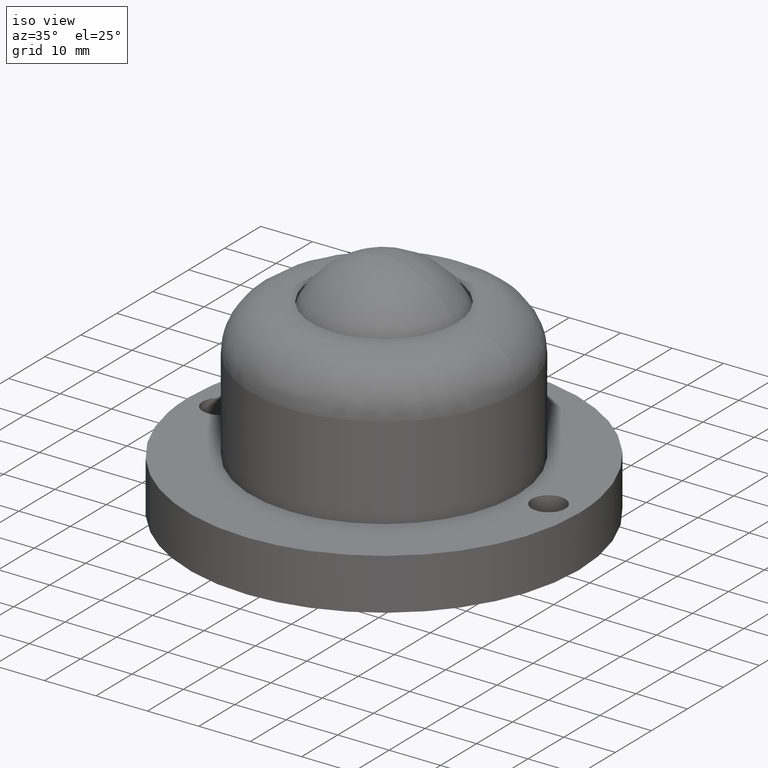
[diagram: clean part render]
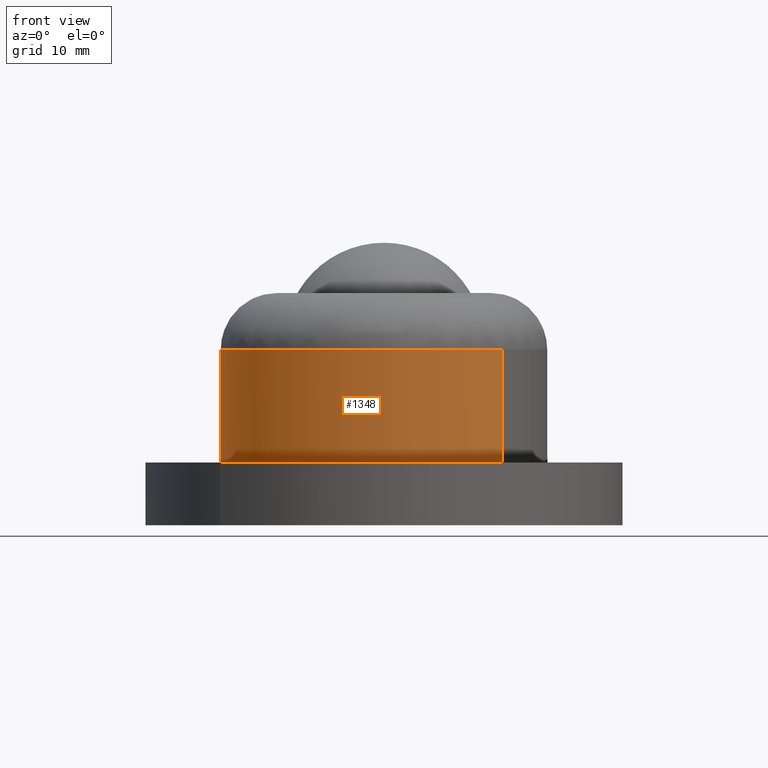
[diagram: tour spotlight — one face highlighted and labeled with its STEP entity id]
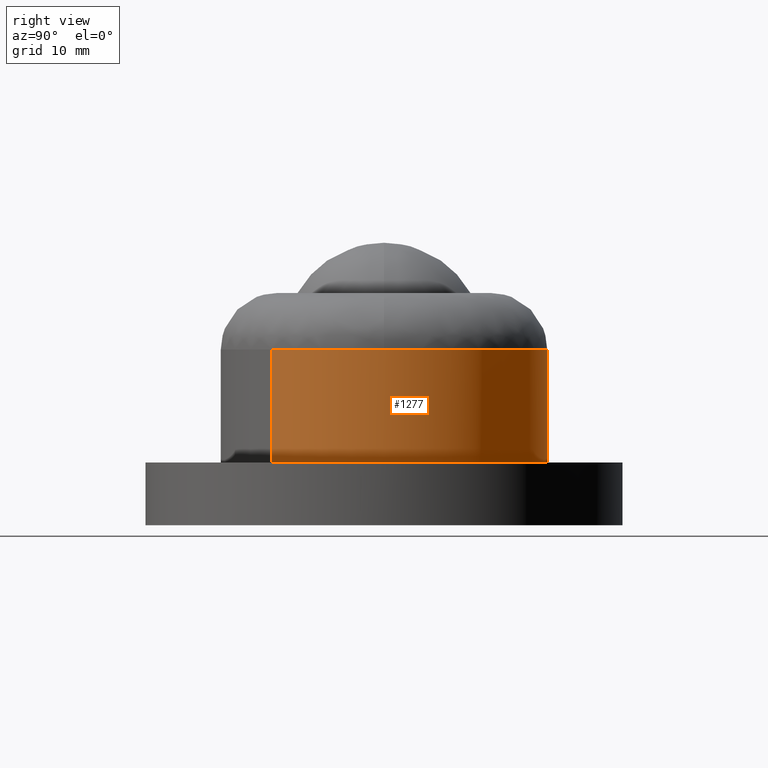
[diagram: tour spotlight — one face highlighted and labeled with its STEP entity id]
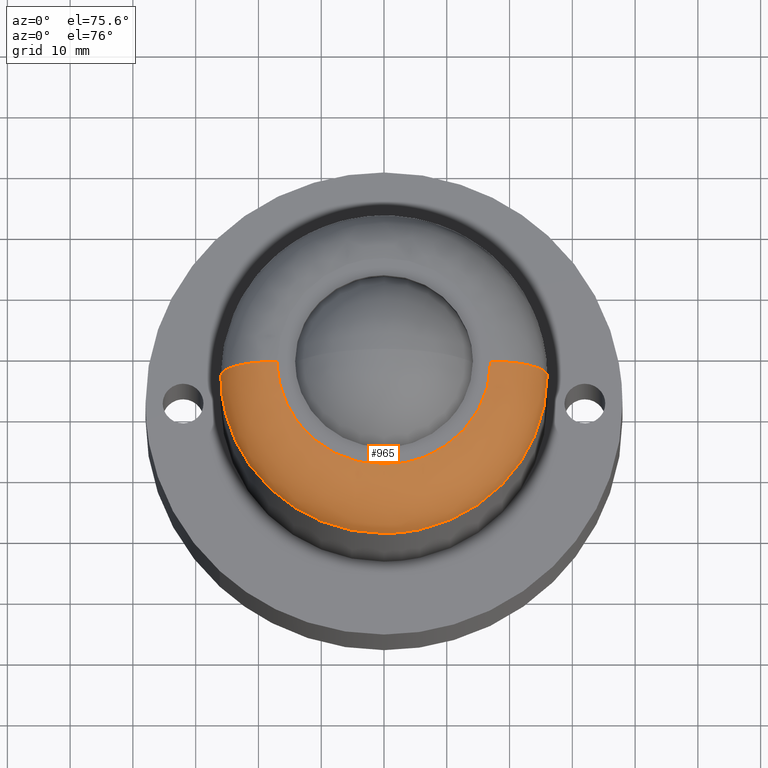
[diagram: tour spotlight — one face highlighted and labeled with its STEP entity id]
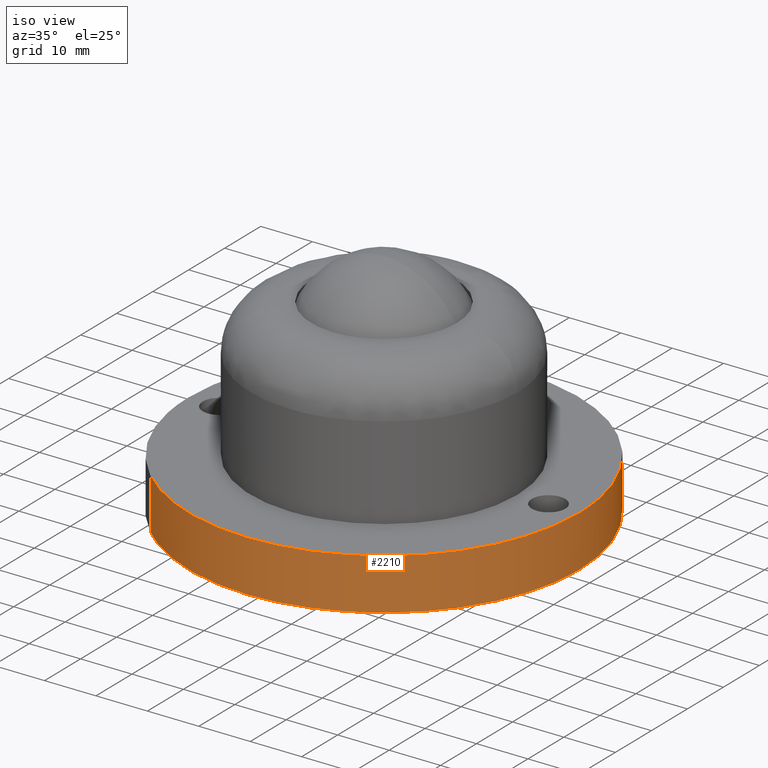
[diagram: tour spotlight — one face highlighted and labeled with its STEP entity id]
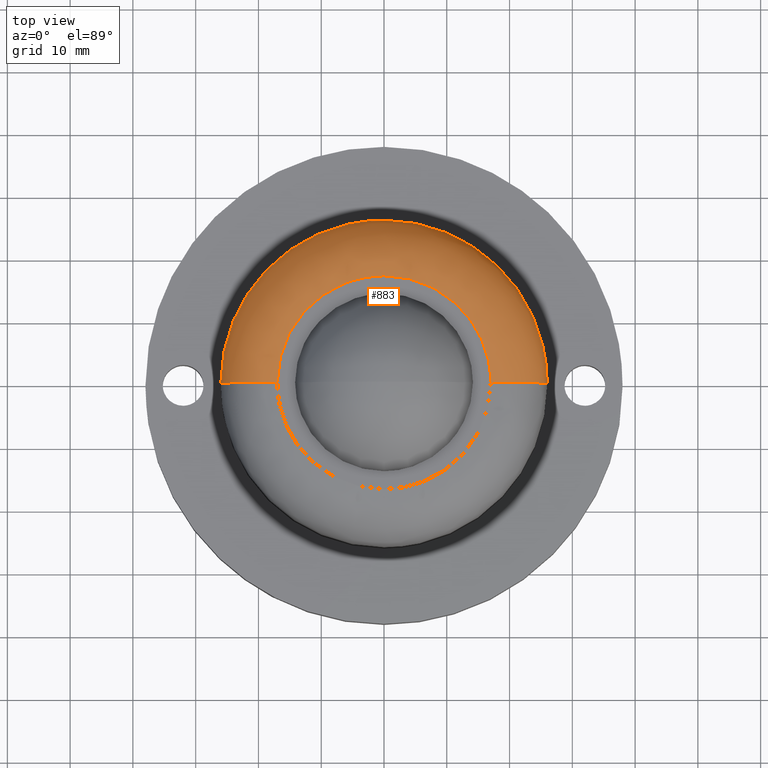
[diagram: tour spotlight — one face highlighted and labeled with its STEP entity id]
A machine part: a face-by-face anatomy tour. The part has 52 B-rep faces; the first image is the clean iso view, then the 5 largest visible faces are spotlighted one at a time (largest first), each with its STEP entity span.

Face 1 — front view, entity #1348. In plain terms, the highlighted face is a freeform B-spline surface patch.
Definition (entity closure, byte-faithful):
#800=CARTESIAN_POINT('',(-25.999999999999741,-2.009686E-015,28.000000000059298));
#801=VERTEX_POINT('',#800);
#855=CARTESIAN_POINT('',(-18.859733453716679,17.897218830917581,28.000000000059298));
#856=VERTEX_POINT('',#855);
#869=CARTESIAN_POINT('',(-25.999999999999741,-2.009686E-015,28.000000000059298));
#870=CARTESIAN_POINT('',(-26.000051954629740,1.182324254518316,28.000000000059320));
#871=CARTESIAN_POINT('',(-25.855979428018330,3.289934905158254,28.000000000059281));
#872=CARTESIAN_POINT('',(-25.273243311875351,6.323189175135181,28.000000000059330));
#873=CARTESIAN_POINT('',(-24.376884216210410,9.225670944524639,28.000000000059281));
#874=CARTESIAN_POINT('',(-22.966008279671708,12.375643389097940,28.000000000059281));
#875=CARTESIAN_POINT('',(-21.093327038164819,15.339568555392930,28.000000000059480));
#876=CARTESIAN_POINT('',(-19.567443333481361,17.151467193017290,28.000000000059242));
#877=CARTESIAN_POINT('',(-18.859733453716679,17.897218830917581,28.000000000059298));
#878=B_SPLINE_CURVE_WITH_KNOTS('',3,(#869,#870,#871,#872,#873,#874,#875,#876,#877),.UNSPECIFIED.,.F.,.U.,(4,1,1,1,1,1,4),(0.000000012727657,3.546971912563091,6.322879466614101,9.252992969258049,12.645745639215409,16.655381712799429,19.739702720165660),.UNSPECIFIED.);
#879=EDGE_CURVE('',#801,#856,#878,.T.);
#914=CARTESIAN_POINT('',(-0.000000937669430,-25.999999999999979,28.000000000059298));
#915=VERTEX_POINT('',#914);
#916=CARTESIAN_POINT('',(-0.000000937669430,-25.999999999999979,28.000000000059298));
#917=CARTESIAN_POINT('',(-1.329447299209452,-26.000081678380820,28.000000000059298));
#918=CARTESIAN_POINT('',(-3.828783729788278,-25.807873356318751,28.000000000059341));
#919=CARTESIAN_POINT('',(-7.677127066206571,-24.943788153502140,28.000000000059298));
#920=CARTESIAN_POINT('',(-10.909306903873460,-23.685579761805741,28.000000000059259));
#921=CARTESIAN_POINT('',(-13.801204650618409,-22.093800438023170,28.000000000059519));
#922=CARTESIAN_POINT('',(-16.027126123036599,-20.536331033175291,28.000000000058979));
#923=CARTESIAN_POINT('',(-18.232693358749550,-18.610063772366338,28.000000000059881));
#924=CARTESIAN_POINT('',(-20.393971313000641,-16.254719896198019,28.000000000059110));
#925=CARTESIAN_POINT('',(-22.554950540971710,-13.146173902241230,28.000000000058979));
#926=CARTESIAN_POINT('',(-24.182957335445749,-9.784374526134194,28.000000000059220));
#927=CARTESIAN_POINT('',(-25.189935838087312,-6.638982399821145,28.000000000059380));
#928=CARTESIAN_POINT('',(-25.832378537823420,-3.509721972073266,28.000000000059220));
#929=CARTESIAN_POINT('',(-26.000090544594439,-1.329455927772033,28.000000000059330));
#930=CARTESIAN_POINT('',(-25.999999999999741,-2.009686E-015,28.000000000059298));
#931=B_SPLINE_CURVE_WITH_KNOTS('',3,(#916,#917,#918,#919,#920,#921,#922,#923,#924,#925,#926,#927,#928,#929,#930),.UNSPECIFIED.,.F.,.U.,(4,1,1,1,1,1,1,1,1,1,1,1,4),(0.000000047675670,3.988331005912372,7.498105351484185,11.805535395619620,14.358083796720390,17.389261568347461,19.941815326538979,23.132461344886462,26.961284697933039,31.268713449288100,34.299867382881622,36.852413289023367,40.840768035391697),.UNSPECIFIED.);
#932=EDGE_CURVE('',#915,#801,#931,.T.);
#934=CARTESIAN_POINT('',(18.859733453716789,-17.897218830917691,28.000000000059298));
#935=VERTEX_POINT('',#934);
#936=CARTESIAN_POINT('',(18.859733453716789,-17.897218830917691,28.000000000059298));
#937=CARTESIAN_POINT('',(17.914158454963768,-18.893777905210101,28.000000000059281));
#938=CARTESIAN_POINT('',(16.151444560630470,-20.478441537135350,28.000000000059320));
#939=CARTESIAN_POINT('',(13.190670555578849,-22.486701957116491,28.000000000059298));
#940=CARTESIAN_POINT('',(10.537574231063459,-23.831692254080728,28.000000000059249));
#941=CARTESIAN_POINT('',(7.443142680417130,-24.979069380736320,28.000000000059270));
#942=CARTESIAN_POINT('',(4.066329200390253,-25.786104664798739,28.000000000059320));
#943=CARTESIAN_POINT('',(1.373768219460312,-26.000095592449298,28.000000000059309));
#944=CARTESIAN_POINT('',(-0.000000937669430,-25.999999999999979,28.000000000059298));
#945=B_SPLINE_CURVE_WITH_KNOTS('',3,(#936,#937,#938,#939,#940,#941,#942,#943,#944),.UNSPECIFIED.,.F.,.U.,(4,1,1,1,1,1,4),(0.000000013964524,4.121299564114231,7.088642483410446,10.715370031439241,13.023302604505609,16.979767260915128,21.101066811068389),.UNSPECIFIED.);
#946=EDGE_CURVE('',#935,#915,#945,.T.);
#1212=CARTESIAN_POINT('',(-18.859733453437560,17.897218831211831,10.000000000000449));
#1213=VERTEX_POINT('',#1212);
#1227=CARTESIAN_POINT('',(-18.859733453716679,17.897218830917581,28.000000000059298));
#1228=CARTESIAN_POINT('',(-18.859733453437560,17.897218831211831,10.000000000000449));
#1229=QUASI_UNIFORM_CURVE('',1,(#1227,#1228),.UNSPECIFIED.,.F.,.U.);
#1230=EDGE_CURVE('',#856,#1213,#1229,.T.);
#1235=CARTESIAN_POINT('',(18.859733453437649,-17.897218831211919,10.000000000000449));
#1236=VERTEX_POINT('',#1235);
#1237=CARTESIAN_POINT('',(18.859733453716789,-17.897218830917691,28.000000000059298));
#1238=CARTESIAN_POINT('',(18.859733453437649,-17.897218831211919,10.000000000000449));
#1239=QUASI_UNIFORM_CURVE('',1,(#1237,#1238),.UNSPECIFIED.,.F.,.U.);
#1240=EDGE_CURVE('',#935,#1236,#1239,.T.);
#1278=CARTESIAN_POINT('',(18.859733646319469,-17.897218968037599,28.450000000060790));
#1279=CARTESIAN_POINT('',(0.962514678281874,-36.756952614357068,28.450000000060783));
#1280=CARTESIAN_POINT('',(-17.897218968037599,-18.859733646319469,28.450000000060790));
#1281=CARTESIAN_POINT('',(-36.756952614357068,-0.962514678281874,28.450000000060783));
#1282=CARTESIAN_POINT('',(-18.859733646319469,17.897218968037599,28.450000000060790));
#1283=CARTESIAN_POINT('',(18.859733646319469,-17.897218968037599,9.538749999998480));
#1284=CARTESIAN_POINT('',(0.962514678281874,-36.756952614357068,9.538749999998480));
#1285=CARTESIAN_POINT('',(-17.897218968037599,-18.859733646319469,9.538749999998480));
#1286=CARTESIAN_POINT('',(-36.756952614357068,-0.962514678281874,9.538749999998480));
#1287=CARTESIAN_POINT('',(-18.859733646319469,17.897218968037599,9.538749999998480));
#1295=(BOUNDED_SURFACE()B_SPLINE_SURFACE(2,1,((#1278,#1283),(#1279,#1284),(#1280,#1285),(#1281,#1286),(#1282,#1287)),.UNSPECIFIED.,.F.,.F.,.U.)B_SPLINE_SURFACE_WITH_KNOTS((3,2,3),(2,2),(0.0,43.078210486801858,86.156420973603716),(0.0,18.911250000062310),.UNSPECIFIED.)GEOMETRIC_REPRESENTATION_ITEM()RATIONAL_B_SPLINE_SURFACE(((1.0,1.0),(0.707106781186548,0.707106781186548),(1.0,1.0),(0.707106781186548,0.707106781186548),(1.0,1.0)))REPRESENTATION_ITEM('')SURFACE());
#1296=CARTESIAN_POINT('',(-26.0,0.0,10.0));
#1297=VERTEX_POINT('',#1296);
#1298=CARTESIAN_POINT('',(-26.0,0.0,10.0));
#1299=CARTESIAN_POINT('',(-26.000062718652931,1.387944358350477,10.000000000000050));
#1300=CARTESIAN_POINT('',(-25.760782721160531,4.369461418965334,10.000000000000091));
#1301=CARTESIAN_POINT('',(-24.769401880425551,8.218794714015054,10.000000000000220));
#1302=CARTESIAN_POINT('',(-23.464808315481580,11.300728324181120,10.000000000000270));
#1303=CARTESIAN_POINT('',(-21.734228179364880,14.459697394146099,10.000000000000330));
#1304=CARTESIAN_POINT('',(-20.133880637469531,16.555059737905239,10.000000000000441));
#1305=CARTESIAN_POINT('',(-18.859733453437560,17.897218831211831,10.000000000000449));
#1306=B_SPLINE_CURVE_WITH_KNOTS('',3,(#1298,#1299,#1300,#1301,#1302,#1303,#1304,#1305),.UNSPECIFIED.,.F.,.U.,(4,1,1,1,1,4),(0.000000012718726,4.163840380369164,8.944567807218679,11.874653322943860,14.187910205831500,19.739702720571419),.UNSPECIFIED.);
#1307=EDGE_CURVE('',#1297,#1213,#1306,.T.);
#1308=ORIENTED_EDGE('',*,*,#1307,.F.);
#1309=CARTESIAN_POINT('',(-0.000000937669494,-25.999999999999979,10.0));
#1310=VERTEX_POINT('',#1309);
#1311=CARTESIAN_POINT('',(-0.000000937669494,-25.999999999999979,10.0));
#1312=CARTESIAN_POINT('',(-1.542165150938767,-26.000142584536359,9.999999999999982));
#1313=CARTESIAN_POINT('',(-4.520080268791433,-25.734272222118509,10.000000000000041));
#1314=CARTESIAN_POINT('',(-8.541509144818868,-24.661194076482701,10.000000000000011));
#1315=CARTESIAN_POINT('',(-11.717265402243349,-23.276602185372941,9.999999999999993));
#1316=CARTESIAN_POINT('',(-14.339258079200500,-21.748450908948520,10.000000000000030));
#1317=CARTESIAN_POINT('',(-16.783582203491441,-19.947249813463671,9.999999999999920));
#1318=CARTESIAN_POINT('',(-19.215521856592389,-17.631898550334540,10.000000000000259));
#1319=CARTESIAN_POINT('',(-21.213747142214391,-15.135112855203630,9.999999999999787));
#1320=CARTESIAN_POINT('',(-22.878020496273180,-12.470916503018580,10.000000000000311));
#1321=CARTESIAN_POINT('',(-24.208074152909369,-9.681005222811159,10.000000000000030));
#1322=CARTESIAN_POINT('',(-25.168543037541919,-6.743299036080187,9.999999999999947));
#1323=CARTESIAN_POINT('',(-25.832374926661998,-3.509720638990650,10.000000000000050));
#1324=CARTESIAN_POINT('',(-26.000090891844859,-1.329456277780479,9.999999999999981));
#1325=CARTESIAN_POINT('',(-26.0,0.0,10.0));
#1326=B_SPLINE_CURVE_WITH_KNOTS('',3,(#1311,#1312,#1313,#1314,#1315,#1316,#1317,#1318,#1319,#1320,#1321,#1322,#1323,#1324,#1325),.UNSPECIFIED.,.F.,.U.,(4,1,1,1,1,1,1,1,1,1,1,1,4),(0.000000047673083,4.626470133979389,8.933913233814192,12.443672289234771,14.996221850880801,18.027401931789111,21.537089332013611,25.046875898182080,27.599421104138251,30.949645942676881,34.299867382881708,36.852413289023552,40.840768035391918),.UNSPECIFIED.);
#1327=EDGE_CURVE('',#1310,#1297,#1326,.T.);
#1328=ORIENTED_EDGE('',*,*,#1327,.F.);
#1329=CARTESIAN_POINT('',(18.859733453437649,-17.897218831211919,10.000000000000449));
#1330=CARTESIAN_POINT('',(17.800720327435890,-19.013398462509610,10.000000000000460));
#1331=CARTESIAN_POINT('',(15.773300234572909,-20.801372631559101,10.000000000000320));
#1332=CARTESIAN_POINT('',(12.754647813529321,-22.725439865301830,10.000000000000369));
#1333=CARTESIAN_POINT('',(10.228109688538179,-23.946394226604959,10.000000000000160));
#1334=CARTESIAN_POINT('',(7.597859798793640,-24.921670648964021,10.000000000000201));
#1335=CARTESIAN_POINT('',(4.231157669425583,-25.760264384167670,10.000000000000110));
#1336=CARTESIAN_POINT('',(1.538624149280733,-26.000153087904309,10.000000000000030));
#1337=CARTESIAN_POINT('',(-0.000000937669494,-25.999999999999979,10.0));
#1338=B_SPLINE_CURVE_WITH_KNOTS('',3,(#1329,#1330,#1331,#1332,#1333,#1334,#1335,#1336,#1337),.UNSPECIFIED.,.F.,.U.,(4,1,1,1,1,1,4),(0.000000013965895,4.615855580826871,8.077764220368556,10.715370031233610,13.023302604255459,16.485211243797579,21.101066810662878),.UNSPECIFIED.);
#1339=EDGE_CURVE('',#1236,#1310,#1338,.T.);
#1340=ORIENTED_EDGE('',*,*,#1339,.F.);
#1341=ORIENTED_EDGE('',*,*,#1240,.F.);
#1342=ORIENTED_EDGE('',*,*,#946,.T.);
#1343=ORIENTED_EDGE('',*,*,#932,.T.);
#1344=ORIENTED_EDGE('',*,*,#879,.T.);
#1345=ORIENTED_EDGE('',*,*,#1230,.T.);
#1346=EDGE_LOOP('',(#1308,#1328,#1340,#1341,#1342,#1343,#1344,#1345));
#1347=FACE_OUTER_BOUND('',#1346,.T.);
#1348=ADVANCED_FACE('',(#1347),#1295,.T.);

Face 2 — right view, entity #1277. In plain terms, the highlighted face is a freeform B-spline surface patch.
Definition (entity closure, byte-faithful):
#818=CARTESIAN_POINT('',(25.999999999999869,2.586843E-016,28.000000000059298));
#819=VERTEX_POINT('',#818);
#835=CARTESIAN_POINT('',(0.000000937669973,25.999999999999989,28.000000000059309));
#836=VERTEX_POINT('',#835);
#837=CARTESIAN_POINT('',(0.000000937669973,25.999999999999989,28.000000000059309));
#838=CARTESIAN_POINT('',(1.116731838581454,26.000038307459558,28.000000000059359));
#839=CARTESIAN_POINT('',(3.190662363063084,25.866175415473140,28.000000000059231));
#840=CARTESIAN_POINT('',(6.122777429157824,25.320239418650100,28.000000000059341));
#841=CARTESIAN_POINT('',(9.438153317876978,24.325789049965440,28.000000000059231));
#842=CARTESIAN_POINT('',(12.391489160519910,22.951106830883631,28.000000000059490));
#843=CARTESIAN_POINT('',(15.123812419064150,21.197066633421478,28.000000000059199));
#844=CARTESIAN_POINT('',(17.594791359900871,19.256688376360142,28.000000000059551));
#845=CARTESIAN_POINT('',(19.854209685661921,16.912471038126139,28.000000000059259));
#846=CARTESIAN_POINT('',(21.804230612578522,14.248997972610500,28.000000000059600));
#847=CARTESIAN_POINT('',(23.279258277494559,11.718222759035010,28.000000000059131));
#848=CARTESIAN_POINT('',(24.590282234290399,8.685587652240592,28.000000000059359));
#849=CARTESIAN_POINT('',(25.697306674493522,4.732756831449843,28.000000000059298));
#850=CARTESIAN_POINT('',(26.000254147343881,1.754892724440281,28.000000000059291));
#851=CARTESIAN_POINT('',(25.999999999999869,2.586843E-016,28.000000000059298));
#852=B_SPLINE_CURVE_WITH_KNOTS('',3,(#837,#838,#839,#840,#841,#842,#843,#844,#845,#846,#847,#848,#849,#850,#851),.UNSPECIFIED.,.F.,.U.,(4,1,1,1,1,1,1,1,1,1,1,1,4),(0.000000047674320,3.350191907100893,6.221835085393700,8.933913233815787,13.719946318923601,15.953448951479031,18.665541630265810,23.132461344884700,25.685012367445680,28.556622437393159,31.906851596545891,35.576139713462581,40.840768035391463),.UNSPECIFIED.);
#853=EDGE_CURVE('',#836,#819,#852,.T.);
#855=CARTESIAN_POINT('',(-18.859733453716679,17.897218830917581,28.000000000059298));
#856=VERTEX_POINT('',#855);
#857=CARTESIAN_POINT('',(-18.859733453716679,17.897218830917581,28.000000000059298));
#858=CARTESIAN_POINT('',(-17.914146629002040,18.893760551052061,28.000000000059309));
#859=CARTESIAN_POINT('',(-15.741575603417051,20.847074211159882,28.000000000059281));
#860=CARTESIAN_POINT('',(-12.338760054853211,23.000957148224408,28.000000000059401));
#861=CARTESIAN_POINT('',(-9.109827623570192,24.412374187844971,28.000000000059199));
#862=CARTESIAN_POINT('',(-6.480016366149377,25.220098085392049,28.000000000059579));
#863=CARTESIAN_POINT('',(-3.516811772507479,25.829735072317071,28.000000000059138));
#864=CARTESIAN_POINT('',(-1.373770175159848,26.000094025114130,28.000000000059330));
#865=CARTESIAN_POINT('',(0.000000937669973,25.999999999999989,28.000000000059309));
#866=B_SPLINE_CURVE_WITH_KNOTS('',3,(#857,#858,#859,#860,#861,#862,#863,#864,#865),.UNSPECIFIED.,.F.,.U.,(4,1,1,1,1,1,4),(0.000000013962651,4.121299564113112,8.737175196929675,12.034197280062610,14.671832962666180,16.979767260915470,21.101066811068879),.UNSPECIFIED.);
#867=EDGE_CURVE('',#856,#836,#866,.T.);
#934=CARTESIAN_POINT('',(18.859733453716789,-17.897218830917691,28.000000000059298));
#935=VERTEX_POINT('',#934);
#948=CARTESIAN_POINT('',(25.999999999999869,2.586843E-016,28.000000000059298));
#949=CARTESIAN_POINT('',(26.000029154822681,-1.028106891429084,28.000000000059298));
#950=CARTESIAN_POINT('',(25.874829404115498,-3.135723165580450,28.000000000059309));
#951=CARTESIAN_POINT('',(25.309584497955459,-6.226279493549155,28.000000000059309));
#952=CARTESIAN_POINT('',(24.496467087887989,-8.831620408258706,28.000000000059352));
#953=CARTESIAN_POINT('',(23.381654426234409,-11.487678221206790,28.000000000059149));
#954=CARTESIAN_POINT('',(21.713681531671099,-14.510968767350430,28.000000000059309));
#955=CARTESIAN_POINT('',(19.956796049979680,-16.741392480391351,28.000000000059380));
#956=CARTESIAN_POINT('',(18.859733453716789,-17.897218830917691,28.000000000059298));
#957=B_SPLINE_CURVE_WITH_KNOTS('',3,(#948,#949,#950,#951,#952,#953,#954,#955,#956),.UNSPECIFIED.,.F.,.U.,(4,1,1,1,1,1,4),(0.000000012720736,3.084321020091888,6.322879466610024,9.407212535532022,11.257784120637840,14.958993901676520,19.739702720165770),.UNSPECIFIED.);
#958=EDGE_CURVE('',#819,#935,#957,.T.);
#1194=CARTESIAN_POINT('',(-18.859733646319469,17.897218968037599,28.450000000060790));
#1195=CARTESIAN_POINT('',(-0.962514678281874,36.756952614357068,28.450000000060783));
#1196=CARTESIAN_POINT('',(17.897218968037599,18.859733646319469,28.450000000060790));
#1197=CARTESIAN_POINT('',(36.756952614357068,0.962514678281874,28.450000000060783));
#1198=CARTESIAN_POINT('',(18.859733646319469,-17.897218968037599,28.450000000060790));
#1199=CARTESIAN_POINT('',(-18.859733646319469,17.897218968037599,9.538749999998480));
#1200=CARTESIAN_POINT('',(-0.962514678281874,36.756952614357068,9.538749999998480));
#1201=CARTESIAN_POINT('',(17.897218968037599,18.859733646319469,9.538749999998480));
#1202=CARTESIAN_POINT('',(36.756952614357068,0.962514678281874,9.538749999998480));
#1203=CARTESIAN_POINT('',(18.859733646319469,-17.897218968037599,9.538749999998480));
#1211=(BOUNDED_SURFACE()B_SPLINE_SURFACE(2,1,((#1194,#1199),(#1195,#1200),(#1196,#1201),(#1197,#1202),(#1198,#1203)),.UNSPECIFIED.,.F.,.F.,.U.)B_SPLINE_SURFACE_WITH_KNOTS((3,2,3),(2,2),(0.0,43.078210486801858,86.156420973603716),(0.0,18.911250000062310),.UNSPECIFIED.)GEOMETRIC_REPRESENTATION_ITEM()RATIONAL_B_SPLINE_SURFACE(((1.0,1.0),(0.707106781186548,0.707106781186548),(1.0,1.0),(0.707106781186548,0.707106781186548),(1.0,1.0)))REPRESENTATION_ITEM('')SURFACE());
#1212=CARTESIAN_POINT('',(-18.859733453437560,17.897218831211831,10.000000000000449));
#1213=VERTEX_POINT('',#1212);
#1214=CARTESIAN_POINT('',(0.000000937669984,25.999999999999989,10.0));
#1215=VERTEX_POINT('',#1214);
#1216=CARTESIAN_POINT('',(-18.859733453437560,17.897218831211831,10.000000000000449));
#1217=CARTESIAN_POINT('',(-17.914151691229652,18.893771588869111,10.000000000000430));
#1218=CARTESIAN_POINT('',(-15.905513605462300,20.699596124625788,10.000000000000369));
#1219=CARTESIAN_POINT('',(-12.579970717419700,22.864098767723849,10.000000000000320));
#1220=CARTESIAN_POINT('',(-8.820427583147570,24.579215537771120,10.000000000000179));
#1221=CARTESIAN_POINT('',(-4.615818729196557,25.726058832330960,10.000000000000190));
#1222=CARTESIAN_POINT('',(-1.538623080791056,26.000147988111159,10.000000000000011));
#1223=CARTESIAN_POINT('',(0.000000937669984,25.999999999999989,10.0));
#1224=B_SPLINE_CURVE_WITH_KNOTS('',3,(#1216,#1217,#1218,#1219,#1220,#1221,#1222,#1223),.UNSPECIFIED.,.F.,.U.,(4,1,1,1,1,4),(0.000000013962300,4.121299564033723,8.077764220367293,11.869341412629860,16.485211243797838,21.101066810663330),.UNSPECIFIED.);
#1225=EDGE_CURVE('',#1213,#1215,#1224,.T.);
#1226=ORIENTED_EDGE('',*,*,#1225,.F.);
#1227=CARTESIAN_POINT('',(-18.859733453716679,17.897218830917581,28.000000000059298));
#1228=CARTESIAN_POINT('',(-18.859733453437560,17.897218831211831,10.000000000000449));
#1229=QUASI_UNIFORM_CURVE('',1,(#1227,#1228),.UNSPECIFIED.,.F.,.U.);
#1230=EDGE_CURVE('',#856,#1213,#1229,.T.);
#1231=ORIENTED_EDGE('',*,*,#1230,.F.);
#1232=ORIENTED_EDGE('',*,*,#867,.T.);
#1233=ORIENTED_EDGE('',*,*,#853,.T.);
#1234=ORIENTED_EDGE('',*,*,#958,.T.);
#1235=CARTESIAN_POINT('',(18.859733453437649,-17.897218831211919,10.000000000000449));
#1236=VERTEX_POINT('',#1235);
#1237=CARTESIAN_POINT('',(18.859733453716789,-17.897218830917691,28.000000000059298));
#1238=CARTESIAN_POINT('',(18.859733453437649,-17.897218831211919,10.000000000000449));
#1239=QUASI_UNIFORM_CURVE('',1,(#1237,#1238),.UNSPECIFIED.,.F.,.U.);
#1240=EDGE_CURVE('',#935,#1236,#1239,.T.);
#1241=ORIENTED_EDGE('',*,*,#1240,.T.);
#1242=CARTESIAN_POINT('',(26.0,0.0,10.0));
#1243=VERTEX_POINT('',#1242);
#1244=CARTESIAN_POINT('',(26.0,0.0,10.0));
#1245=CARTESIAN_POINT('',(26.000030114585350,-1.182320656626398,10.000000000000050));
#1246=CARTESIAN_POINT('',(25.820938625188528,-3.804007948849703,10.000000000000080));
#1247=CARTESIAN_POINT('',(25.068574588979210,-7.177153379553820,10.000000000000201));
#1248=CARTESIAN_POINT('',(23.992141458538981,-10.126105795695709,10.000000000000250));
#1249=CARTESIAN_POINT('',(22.677314487009721,-12.863489558242540,10.000000000000300));
#1250=CARTESIAN_POINT('',(20.965984879518981,-15.502184787215739,10.000000000000471));
#1251=CARTESIAN_POINT('',(19.496669783928890,-17.226037776598950,10.000000000000419));
#1252=CARTESIAN_POINT('',(18.859733453437649,-17.897218831211919,10.000000000000449));
#1253=B_SPLINE_CURVE_WITH_KNOTS('',3,(#1244,#1245,#1246,#1247,#1248,#1249,#1250,#1251,#1252),.UNSPECIFIED.,.F.,.U.,(4,1,1,1,1,1,4),(0.000000012725373,3.546971912634241,7.865049410355438,10.332490197578590,12.954172374082360,16.963808447742370,19.739702720571412),.UNSPECIFIED.);
#1254=EDGE_CURVE('',#1243,#1236,#1253,.T.);
#1255=ORIENTED_EDGE('',*,*,#1254,.F.);
#1256=CARTESIAN_POINT('',(0.000000937669984,25.999999999999989,10.0));
#1257=CARTESIAN_POINT('',(0.850844235318469,26.000003435487098,9.999999999999998));
#1258=CARTESIAN_POINT('',(2.924785852278291,25.898133632413280,10.0));
#1259=CARTESIAN_POINT('',(6.603568526277551,25.271594488074140,10.000000000000080));
#1260=CARTESIAN_POINT('',(10.337588241127980,23.974212271024442,9.999999999999806));
#1261=CARTESIAN_POINT('',(13.391672516563840,22.341506757626711,10.000000000000229));
#1262=CARTESIAN_POINT('',(15.992099205565401,20.580871824105639,9.999999999999814));
#1263=CARTESIAN_POINT('',(18.207408955865390,18.658073207388110,10.000000000000190));
#1264=CARTESIAN_POINT('',(20.231561094373621,16.396913958864602,9.999999999999940));
#1265=CARTESIAN_POINT('',(21.804244884793000,14.249009350151640,10.000000000000080));
#1266=CARTESIAN_POINT('',(23.118322027036491,11.994297003632701,9.999999999999817));
#1267=CARTESIAN_POINT('',(24.307411840777100,9.377096115419560,9.999999999999993));
#1268=CARTESIAN_POINT('',(25.168543695698279,6.743300477804596,10.000000000000020));
#1269=CARTESIAN_POINT('',(25.832384785748211,3.509723484742368,10.000000000000011));
#1270=CARTESIAN_POINT('',(26.000086110423030,1.329454909173348,10.0));
#1271=CARTESIAN_POINT('',(26.0,0.0,10.0));
#1272=B_SPLINE_CURVE_WITH_KNOTS('',3,(#1256,#1257,#1258,#1259,#1260,#1261,#1262,#1263,#1264,#1265,#1266,#1267,#1268,#1269,#1270,#1271),.UNSPECIFIED.,.F.,.U.,(4,1,1,1,1,1,1,1,1,1,1,1,1,4),(0.000000047681453,2.552537376958050,6.221835085398091,11.167398415340021,14.358083796721530,16.591587919005320,20.579889383392171,23.132461344885421,25.685012367446220,28.556622437393500,30.949645942676810,34.299867382881551,36.852413289023261,40.840768035391598),.UNSPECIFIED.);
#1273=EDGE_CURVE('',#1215,#1243,#1272,.T.);
#1274=ORIENTED_EDGE('',*,*,#1273,.F.);
#1275=EDGE_LOOP('',(#1226,#1231,#1232,#1233,#1234,#1241,#1255,#1274));
#1276=FACE_OUTER_BOUND('',#1275,.T.);
#1277=ADVANCED_FACE('',(#1276),#1211,.T.);

Face 3 — auxiliary view, entity #965. In plain terms, the highlighted face is a freeform B-spline surface patch.
Definition (entity closure, byte-faithful):
#684=CARTESIAN_POINT('',(-0.000000763991117,-16.999999999999730,37.0));
#685=VERTEX_POINT('',#684);
#686=CARTESIAN_POINT('',(-17.000000000116270,-1.999253E-015,37.0));
#687=VERTEX_POINT('',#686);
#688=CARTESIAN_POINT('',(-0.000000763991117,-16.999999999999730,37.0));
#689=CARTESIAN_POINT('',(-0.695403229188149,-17.000014289889439,36.999999999999943));
#690=CARTESIAN_POINT('',(-2.225290277149363,-16.906023604350160,37.000000000000192));
#691=CARTESIAN_POINT('',(-4.618926252006056,-16.429947025275620,36.999999999999837));
#692=CARTESIAN_POINT('',(-6.945549124535017,-15.581314134229221,37.000000000000107));
#693=CARTESIAN_POINT('',(-8.970263986453315,-14.491021534872621,36.999999999999908));
#694=CARTESIAN_POINT('',(-10.845643389437599,-13.161672578798770,37.000000000000270));
#695=CARTESIAN_POINT('',(-12.471812514527880,-11.632298483564551,37.000000000000043));
#696=CARTESIAN_POINT('',(-14.022957719838020,-9.706381020731183,37.000000000000092));
#697=CARTESIAN_POINT('',(-15.332071966229710,-7.522358136277576,36.999999999999922));
#698=CARTESIAN_POINT('',(-16.250718320384991,-5.183594913962859,37.000000000000050));
#699=CARTESIAN_POINT('',(-16.854146540806699,-2.642503947934382,37.0));
#700=CARTESIAN_POINT('',(-17.000100670793980,-1.008343017076303,36.999999999999893));
#701=CARTESIAN_POINT('',(-17.000000000116270,-1.999253E-015,37.0));
#702=B_SPLINE_CURVE_WITH_KNOTS('',3,(#688,#689,#690,#691,#692,#693,#694,#695,#696,#697,#698,#699,#700,#701),.UNSPECIFIED.,.F.,.U.,(4,1,1,1,1,1,1,1,1,1,1,4),(0.000000060102945,2.086212439964452,4.589664210474638,7.301760944261968,9.492307218685408,11.474198681401591,14.186265424762841,16.168158507815068,18.880265339192022,21.800970193135569,23.678566615175551,26.703579015132849),.UNSPECIFIED.);
#703=EDGE_CURVE('',#685,#687,#702,.T.);
#705=CARTESIAN_POINT('',(17.000000000116270,9.822633E-016,37.0));
#706=VERTEX_POINT('',#705);
#707=CARTESIAN_POINT('',(17.000000000116270,9.822633E-016,37.0));
#708=CARTESIAN_POINT('',(17.000221732324810,-1.216974722045821,37.000000000000057));
#709=CARTESIAN_POINT('',(16.778727660274200,-3.268324419492958,36.999999999999858));
#710=CARTESIAN_POINT('',(16.034985560489542,-5.775166798195232,37.000000000000142));
#711=CARTESIAN_POINT('',(15.061222246289841,-8.009022250592434,36.999999999999851));
#712=CARTESIAN_POINT('',(13.779025572776680,-10.089930330782570,37.000000000000298));
#713=CARTESIAN_POINT('',(12.173557367206030,-11.928029979998760,36.999999999999538));
#714=CARTESIAN_POINT('',(10.591397686844250,-13.344430750440351,37.000000000000377));
#715=CARTESIAN_POINT('',(8.999592763220354,-14.472827071477029,36.999999999999787));
#716=CARTESIAN_POINT('',(6.883641009713552,-15.612285227763151,36.999999999999282));
#717=CARTESIAN_POINT('',(4.618289760996543,-16.430673063253479,37.000000000001357));
#718=CARTESIAN_POINT('',(2.190512606638910,-16.905771253611189,36.999999999997662));
#719=CARTESIAN_POINT('',(0.730171635319192,-17.000021689214279,37.000000000001933));
#720=CARTESIAN_POINT('',(-0.000000763991117,-16.999999999999730,37.0));
#721=B_SPLINE_CURVE_WITH_KNOTS('',3,(#707,#708,#709,#710,#711,#712,#713,#714,#715,#716,#717,#718,#719,#720),.UNSPECIFIED.,.F.,.U.,(4,1,1,1,1,1,1,1,1,1,1,4),(0.000000060019108,3.650873987877230,6.154337838714337,7.823316487702936,10.952647423046489,13.456062523317909,15.125044988737180,17.315601377159130,19.297505307886912,22.322526389621750,24.513061915850681,26.703579876330259),.UNSPECIFIED.);
#722=EDGE_CURVE('',#706,#685,#721,.T.);
#800=CARTESIAN_POINT('',(-25.999999999999741,-2.009686E-015,28.000000000059298));
#801=VERTEX_POINT('',#800);
#802=CARTESIAN_POINT('',(-17.000000000116270,-1.999253E-015,37.0));
#803=CARTESIAN_POINT('',(-17.625873018148841,-2.451713E-015,37.000095090647250));
#804=CARTESIAN_POINT('',(-18.583024501186710,-3.071125E-015,36.899725530709702));
#805=CARTESIAN_POINT('',(-19.971266290663380,-3.803926E-015,36.524694079569912));
#806=CARTESIAN_POINT('',(-21.264592071152070,-4.345490E-015,35.979735909724347));
#807=CARTESIAN_POINT('',(-22.659988171429131,-4.698986E-015,35.071937378966290));
#808=CARTESIAN_POINT('',(-23.983888055417101,-4.723738E-015,33.780209586883700));
#809=CARTESIAN_POINT('',(-25.012835332804151,-4.356190E-015,32.240298206114588));
#810=CARTESIAN_POINT('',(-25.795767929252978,-3.509168E-015,30.282390014102280));
#811=CARTESIAN_POINT('',(-26.000348859119811,-2.621035E-015,28.846795809583639));
#812=CARTESIAN_POINT('',(-25.999999999999741,-2.009686E-015,28.000000000059298));
#813=B_SPLINE_CURVE_WITH_KNOTS('',3,(#802,#803,#804,#805,#806,#807,#808,#809,#810,#811,#812),.UNSPECIFIED.,.F.,.U.,(4,1,1,1,1,1,1,1,4),(0.000000042109791,1.877599280406029,2.871624140780124,4.307446377275330,6.074605069650701,7.841735933651200,9.829809876793858,11.596975866118900,14.137255645777801),.UNSPECIFIED.);
#814=EDGE_CURVE('',#687,#801,#813,.T.);
#818=CARTESIAN_POINT('',(25.999999999999869,2.586843E-016,28.000000000059298));
#819=VERTEX_POINT('',#818);
#820=CARTESIAN_POINT('',(17.000000000116270,9.822633E-016,37.0));
#821=CARTESIAN_POINT('',(17.625873009518578,1.150446E-015,37.000095421918232));
#822=CARTESIAN_POINT('',(18.583024202106682,1.372563E-015,36.899724871484352));
#823=CARTESIAN_POINT('',(19.971271721051640,1.614631E-015,36.524704057815690));
#824=CARTESIAN_POINT('',(20.992287722450570,1.738745E-015,36.094419112084189));
#825=CARTESIAN_POINT('',(22.106924084292132,1.811453E-015,35.444807298461022));
#826=CARTESIAN_POINT('',(23.039074806830730,1.807952E-015,34.717323879426473));
#827=CARTESIAN_POINT('',(24.107363506530639,1.703339E-015,33.595391045345622));
#828=CARTESIAN_POINT('',(25.012822255031899,1.473592E-015,32.240297586899288));
#829=CARTESIAN_POINT('',(25.795777387984810,1.000513E-015,30.282391712091950));
#830=CARTESIAN_POINT('',(26.000345719502679,5.543614E-016,28.846795347551119));
#831=CARTESIAN_POINT('',(25.999999999999869,2.586843E-016,28.000000000059298));
#832=B_SPLINE_CURVE_WITH_KNOTS('',3,(#820,#821,#822,#823,#824,#825,#826,#827,#828,#829,#830,#831),.UNSPECIFIED.,.F.,.U.,(4,1,1,1,1,1,1,1,1,4),(0.000000042103247,1.877599280399712,2.871624140773664,4.307446377268885,5.191027287405660,6.737319881447710,7.841735933646075,9.829809876790517,11.596975866117180,14.137255645778049),.UNSPECIFIED.);
#833=EDGE_CURVE('',#706,#819,#832,.T.);
#884=CARTESIAN_POINT('',(16.375844820817836,0.457815198138171,36.978331154078710));
#885=CARTESIAN_POINT('',(16.375844820817832,0.230240699616921,36.978331154078703));
#886=CARTESIAN_POINT('',(16.375844820817839,-16.375844820817839,36.978331154078710));
#887=CARTESIAN_POINT('',(2.005396E-015,-16.375844820817832,36.978331154078703));
#888=CARTESIAN_POINT('',(-16.375844820817822,-16.375844820817839,36.978331154078710));
#889=CARTESIAN_POINT('',(-16.375844820817832,0.230240699616922,36.978331154078710));
#890=CARTESIAN_POINT('',(-16.375844820817829,0.457815198138177,36.978331154078703));
#891=CARTESIAN_POINT('',(26.699653447279470,0.746435207889097,37.696021169350850));
#892=CARTESIAN_POINT('',(26.699653447279481,0.375391129831429,37.696021169350843));
#893=CARTESIAN_POINT('',(26.699653447279474,-26.699653447279474,37.696021169350828));
#894=CARTESIAN_POINT('',(3.269657E-015,-26.699653447279466,37.696021169350836));
#895=CARTESIAN_POINT('',(-26.699653447279474,-26.699653447279474,37.696021169350828));
#896=CARTESIAN_POINT('',(-26.699653447279474,0.375391129831430,37.696021169350836));
#897=CARTESIAN_POINT('',(-26.699653447279481,0.746435207889106,37.696021169350843));
#898=CARTESIAN_POINT('',(25.978096750033078,0.726262836574376,27.372482074327067));
#899=CARTESIAN_POINT('',(25.978096750033075,0.365246204753970,27.372482074327067));
#900=CARTESIAN_POINT('',(25.978096750033068,-25.978096750033068,27.372482074327067));
#901=CARTESIAN_POINT('',(3.181294E-015,-25.978096750033075,27.372482074327067));
#902=CARTESIAN_POINT('',(-25.978096750033068,-25.978096750033068,27.372482074327067));
#903=CARTESIAN_POINT('',(-25.978096750033075,0.365246204753972,27.372482074327074));
#904=CARTESIAN_POINT('',(-25.978096750033071,0.726262836574386,27.372482074327074));
#912=(BOUNDED_SURFACE()B_SPLINE_SURFACE(2,2,((#884,#891,#898),(#885,#892,#899),(#886,#893,#900),(#887,#894,#901),(#888,#895,#902),(#889,#896,#903),(#890,#897,#904)),.UNSPECIFIED.,.F.,.F.,.U.)B_SPLINE_SURFACE_WITH_KNOTS((3,1,2,1,3),(3,3),(0.0,0.860838399880311,43.902758393896796,86.944678387913285,87.805516787793621),(0.0,16.404544592973181),.UNSPECIFIED.)GEOMETRIC_REPRESENTATION_ITEM()RATIONAL_B_SPLINE_SURFACE(((0.926697838400259,0.606435486919035,0.921564728292852),(0.921332230155912,0.602924207283492,0.916228840909793),(0.647686209694202,0.423848945870745,0.644098584373797),(0.915966621911565,0.599412927647948,0.910892953526734),(0.647686209694202,0.423848945870745,0.644098584373797),(0.921332230155912,0.602924207283492,0.916228840909793),(0.926697838400259,0.606435486919036,0.921564728292852)))REPRESENTATION_ITEM('')SURFACE());
#913=ORIENTED_EDGE('',*,*,#814,.T.);
#914=CARTESIAN_POINT('',(-0.000000937669430,-25.999999999999979,28.000000000059298));
#915=VERTEX_POINT('',#914);
#916=CARTESIAN_POINT('',(-0.000000937669430,-25.999999999999979,28.000000000059298));
#917=CARTESIAN_POINT('',(-1.329447299209452,-26.000081678380820,28.000000000059298));
#918=CARTESIAN_POINT('',(-3.828783729788278,-25.807873356318751,28.000000000059341));
#919=CARTESIAN_POINT('',(-7.677127066206571,-24.943788153502140,28.000000000059298));
#920=CARTESIAN_POINT('',(-10.909306903873460,-23.685579761805741,28.000000000059259));
#921=CARTESIAN_POINT('',(-13.801204650618409,-22.093800438023170,28.000000000059519));
#922=CARTESIAN_POINT('',(-16.027126123036599,-20.536331033175291,28.000000000058979));
#923=CARTESIAN_POINT('',(-18.232693358749550,-18.610063772366338,28.000000000059881));
#924=CARTESIAN_POINT('',(-20.393971313000641,-16.254719896198019,28.000000000059110));
#925=CARTESIAN_POINT('',(-22.554950540971710,-13.146173902241230,28.000000000058979));
#926=CARTESIAN_POINT('',(-24.182957335445749,-9.784374526134194,28.000000000059220));
#927=CARTESIAN_POINT('',(-25.189935838087312,-6.638982399821145,28.000000000059380));
#928=CARTESIAN_POINT('',(-25.832378537823420,-3.509721972073266,28.000000000059220));
#929=CARTESIAN_POINT('',(-26.000090544594439,-1.329455927772033,28.000000000059330));
#930=CARTESIAN_POINT('',(-25.999999999999741,-2.009686E-015,28.000000000059298));
#931=B_SPLINE_CURVE_WITH_KNOTS('',3,(#916,#917,#918,#919,#920,#921,#922,#923,#924,#925,#926,#927,#928,#929,#930),.UNSPECIFIED.,.F.,.U.,(4,1,1,1,1,1,1,1,1,1,1,1,4),(0.000000047675670,3.988331005912372,7.498105351484185,11.805535395619620,14.358083796720390,17.389261568347461,19.941815326538979,23.132461344886462,26.961284697933039,31.268713449288100,34.299867382881622,36.852413289023367,40.840768035391697),.UNSPECIFIED.);
#932=EDGE_CURVE('',#915,#801,#931,.T.);
#933=ORIENTED_EDGE('',*,*,#932,.F.);
#934=CARTESIAN_POINT('',(18.859733453716789,-17.897218830917691,28.000000000059298));
#935=VERTEX_POINT('',#934);
#936=CARTESIAN_POINT('',(18.859733453716789,-17.897218830917691,28.000000000059298));
#937=CARTESIAN_POINT('',(17.914158454963768,-18.893777905210101,28.000000000059281));
#938=CARTESIAN_POINT('',(16.151444560630470,-20.478441537135350,28.000000000059320));
#939=CARTESIAN_POINT('',(13.190670555578849,-22.486701957116491,28.000000000059298));
#940=CARTESIAN_POINT('',(10.537574231063459,-23.831692254080728,28.000000000059249));
#941=CARTESIAN_POINT('',(7.443142680417130,-24.979069380736320,28.000000000059270));
#942=CARTESIAN_POINT('',(4.066329200390253,-25.786104664798739,28.000000000059320));
#943=CARTESIAN_POINT('',(1.373768219460312,-26.000095592449298,28.000000000059309));
#944=CARTESIAN_POINT('',(-0.000000937669430,-25.999999999999979,28.000000000059298));
#945=B_SPLINE_CURVE_WITH_KNOTS('',3,(#936,#937,#938,#939,#940,#941,#942,#943,#944),.UNSPECIFIED.,.F.,.U.,(4,1,1,1,1,1,4),(0.000000013964524,4.121299564114231,7.088642483410446,10.715370031439241,13.023302604505609,16.979767260915128,21.101066811068389),.UNSPECIFIED.);
#946=EDGE_CURVE('',#935,#915,#945,.T.);
#947=ORIENTED_EDGE('',*,*,#946,.F.);
#948=CARTESIAN_POINT('',(25.999999999999869,2.586843E-016,28.000000000059298));
#949=CARTESIAN_POINT('',(26.000029154822681,-1.028106891429084,28.000000000059298));
#950=CARTESIAN_POINT('',(25.874829404115498,-3.135723165580450,28.000000000059309));
#951=CARTESIAN_POINT('',(25.309584497955459,-6.226279493549155,28.000000000059309));
#952=CARTESIAN_POINT('',(24.496467087887989,-8.831620408258706,28.000000000059352));
#953=CARTESIAN_POINT('',(23.381654426234409,-11.487678221206790,28.000000000059149));
#954=CARTESIAN_POINT('',(21.713681531671099,-14.510968767350430,28.000000000059309));
#955=CARTESIAN_POINT('',(19.956796049979680,-16.741392480391351,28.000000000059380));
#956=CARTESIAN_POINT('',(18.859733453716789,-17.897218830917691,28.000000000059298));
#957=B_SPLINE_CURVE_WITH_KNOTS('',3,(#948,#949,#950,#951,#952,#953,#954,#955,#956),.UNSPECIFIED.,.F.,.U.,(4,1,1,1,1,1,4),(0.000000012720736,3.084321020091888,6.322879466610024,9.407212535532022,11.257784120637840,14.958993901676520,19.739702720165770),.UNSPECIFIED.);
#958=EDGE_CURVE('',#819,#935,#957,.T.);
#959=ORIENTED_EDGE('',*,*,#958,.F.);
#960=ORIENTED_EDGE('',*,*,#833,.F.);
#961=ORIENTED_EDGE('',*,*,#722,.T.);
#962=ORIENTED_EDGE('',*,*,#703,.T.);
#963=EDGE_LOOP('',(#913,#933,#947,#959,#960,#961,#962));
#964=FACE_OUTER_BOUND('',#963,.T.);
#965=ADVANCED_FACE('',(#964),#912,.T.);

Face 4 — iso view, entity #2210. In plain terms, the highlighted face is a freeform B-spline surface patch.
Definition (entity closure, byte-faithful):
#1354=CARTESIAN_POINT('',(-26.157473891689861,-27.564226083921952,10.0));
#1355=VERTEX_POINT('',#1354);
#1370=CARTESIAN_POINT('',(0.0,-38.0,10.0));
#1371=VERTEX_POINT('',#1370);
#1372=CARTESIAN_POINT('',(0.0,-38.0,10.0));
#1373=CARTESIAN_POINT('',(-2.028546607708973,-38.000156696778113,10.000000000000011));
#1374=CARTESIAN_POINT('',(-5.259124461051635,-37.740643122633600,9.999999999999988));
#1375=CARTESIAN_POINT('',(-10.337590206314870,-36.671013695031988,10.000000000000011));
#1376=CARTESIAN_POINT('',(-14.682972445446721,-35.172172660471240,9.999999999999988));
#1377=CARTESIAN_POINT('',(-18.515577372101749,-33.246280134189263,9.999999999999984));
#1378=CARTESIAN_POINT('',(-22.279390293117221,-30.899417274987300,10.000000000000030));
#1379=CARTESIAN_POINT('',(-24.631648692373350,-29.012444600076829,9.999999999999879));
#1380=CARTESIAN_POINT('',(-26.157473891689861,-27.564226083921952,10.0));
#1381=B_SPLINE_CURVE_WITH_KNOTS('',3,(#1372,#1373,#1374,#1375,#1376,#1377,#1378,#1379,#1380),.UNSPECIFIED.,.F.,.U.,(4,1,1,1,1,1,4),(7.097299E-009,6.085614396269026,9.691916528045400,15.552117026497649,19.834604807638129,22.539326720501961,28.850334847467629),.UNSPECIFIED.);
#1382=EDGE_CURVE('',#1371,#1355,#1381,.T.);
#1384=CARTESIAN_POINT('',(38.0,0.0,10.0));
#1385=VERTEX_POINT('',#1384);
#1386=CARTESIAN_POINT('',(38.0,0.0,10.0));
#1387=CARTESIAN_POINT('',(38.000016058019831,-1.398982715398931,10.000000000000011));
#1388=CARTESIAN_POINT('',(37.819599233673443,-4.663295104509746,9.999999999999966));
#1389=CARTESIAN_POINT('',(36.920980454370472,-9.490109453441695,10.000000000000091));
#1390=CARTESIAN_POINT('',(35.466099525959777,-13.848828877424650,9.999999999999925));
#1391=CARTESIAN_POINT('',(33.781505492960392,-17.526642949084390,10.000000000000140));
#1392=CARTESIAN_POINT('',(31.676503212990131,-21.164173447673068,9.999999999999753));
#1393=CARTESIAN_POINT('',(29.139141066431261,-24.520366207566649,10.000000000000130));
#1394=CARTESIAN_POINT('',(25.974265528888001,-27.844515324594258,9.999999999999902));
#1395=CARTESIAN_POINT('',(22.278804113610189,-30.954163602915340,10.000000000000050));
#1396=CARTESIAN_POINT('',(17.764956999056839,-33.735435385518088,9.999999999999981));
#1397=CARTESIAN_POINT('',(12.911074633389850,-35.851432480141540,10.000000000000060));
#1398=CARTESIAN_POINT('',(8.496893646154367,-37.131511469634567,9.999999999999826));
#1399=CARTESIAN_POINT('',(4.119230567858747,-37.849603575048157,10.000000000000510));
#1400=CARTESIAN_POINT('',(1.398982529396478,-38.000032603160179,9.999999999999041));
#1401=CARTESIAN_POINT('',(0.0,-38.0,10.0));
#1402=B_SPLINE_CURVE_WITH_KNOTS('',3,(#1386,#1387,#1388,#1389,#1390,#1391,#1392,#1393,#1394,#1395,#1396,#1397,#1398,#1399,#1400,#1401),.UNSPECIFIED.,.F.,.U.,(4,1,1,1,1,1,1,1,1,1,1,1,1,4),(0.000000017775200,4.196958192233026,9.792936329085599,14.689422862083140,17.953743461424200,21.917558790327551,27.280371545114392,30.544644522137499,35.674293273395612,41.736614609533831,46.399924339290394,51.529573690941540,55.493403751083150,59.690354054898677),.UNSPECIFIED.);
#1403=EDGE_CURVE('',#1385,#1371,#1402,.T.);
#1405=CARTESIAN_POINT('',(26.157473891689861,27.564226083921952,10.0));
#1406=VERTEX_POINT('',#1405);
#1407=CARTESIAN_POINT('',(26.157473891689861,27.564226083921952,10.0));
#1408=CARTESIAN_POINT('',(27.905383838530739,25.905920635368851,9.999999999999993));
#1409=CARTESIAN_POINT('',(30.660085047447041,22.741923308706419,10.000000000000020));
#1410=CARTESIAN_POINT('',(33.486873638640887,18.147929570148829,9.999999999999988));
#1411=CARTESIAN_POINT('',(35.313819938473138,14.209232419279759,10.000000000000011));
#1412=CARTESIAN_POINT('',(36.522751301251510,10.712588082947081,9.999999999999881));
#1413=CARTESIAN_POINT('',(37.662707435798083,5.943025234022495,10.000000000000080));
#1414=CARTESIAN_POINT('',(38.000333537338982,2.409403382462443,9.999999999999966));
#1415=CARTESIAN_POINT('',(38.0,0.0,10.0));
#1416=B_SPLINE_CURVE_WITH_KNOTS('',3,(#1407,#1408,#1409,#1410,#1411,#1412,#1413,#1414,#1415),.UNSPECIFIED.,.F.,.U.,(4,1,1,1,1,1,4),(6.089927E-009,7.228128214624093,12.528763079674480,16.142808624630209,20.238754238020810,23.611891310996128,30.840019519529189),.UNSPECIFIED.);
#1417=EDGE_CURVE('',#1406,#1385,#1416,.T.);
#2126=CARTESIAN_POINT('',(26.157473876362641,27.564226098466921,10.250000000000000));
#2127=CARTESIAN_POINT('',(53.721699974829569,1.406752222104277,10.250000000000000));
#2128=CARTESIAN_POINT('',(27.564226098466921,-26.157473876362641,10.250000000000000));
#2129=CARTESIAN_POINT('',(1.406752222104277,-53.721699974829569,10.250000000000000));
#2130=CARTESIAN_POINT('',(-26.157473876362641,-27.564226098466921,10.250000000000000));
#2131=CARTESIAN_POINT('',(26.157473876362641,27.564226098466921,-0.256250000000000));
#2132=CARTESIAN_POINT('',(53.721699974829569,1.406752222104277,-0.256250000000000));
#2133=CARTESIAN_POINT('',(27.564226098466921,-26.157473876362641,-0.256250000000000));
#2134=CARTESIAN_POINT('',(1.406752222104277,-53.721699974829569,-0.256250000000000));
#2135=CARTESIAN_POINT('',(-26.157473876362641,-27.564226098466921,-0.256250000000000));
#2143=(BOUNDED_SURFACE()B_SPLINE_SURFACE(2,1,((#2126,#2131),(#2127,#2132),(#2128,#2133),(#2129,#2134),(#2130,#2135)),.UNSPECIFIED.,.F.,.F.,.U.)B_SPLINE_SURFACE_WITH_KNOTS((3,2,3),(2,2),(0.0,62.960461480710443,125.920922961420900),(0.0,10.506250000000000),.UNSPECIFIED.)GEOMETRIC_REPRESENTATION_ITEM()RATIONAL_B_SPLINE_SURFACE(((1.0,1.0),(0.707106781186548,0.707106781186548),(1.0,1.0),(0.707106781186548,0.707106781186548),(1.0,1.0)))REPRESENTATION_ITEM('')SURFACE());
#2144=CARTESIAN_POINT('',(26.157473891881342,27.564226083740241,-2.914335E-016));
#2145=VERTEX_POINT('',#2144);
#2146=CARTESIAN_POINT('',(38.0,0.0,0.0));
#2147=VERTEX_POINT('',#2146);
#2148=CARTESIAN_POINT('',(26.157473891881342,27.564226083740241,-2.914335E-016));
#2149=CARTESIAN_POINT('',(27.555697281529259,26.237489403314960,-2.774061E-016));
#2150=CARTESIAN_POINT('',(30.149626935639411,23.370644161162719,-2.470953E-016));
#2151=CARTESIAN_POINT('',(33.033311390102817,19.000969794242380,-2.008952E-016));
#2152=CARTESIAN_POINT('',(35.146769086756599,14.662630031390870,-1.550264E-016));
#2153=CARTESIAN_POINT('',(36.753222641513652,10.110252657649969,-1.068946E-016));
#2154=CARTESIAN_POINT('',(37.775668343424648,5.139996365936055,-5.434462E-017));
#2155=CARTESIAN_POINT('',(38.000042826769139,1.606245195222817,-1.698265E-017));
#2156=CARTESIAN_POINT('',(38.0,0.0,0.0));
#2157=B_SPLINE_CURVE_WITH_KNOTS('',3,(#2148,#2149,#2150,#2151,#2152,#2153,#2154,#2155,#2156),.UNSPECIFIED.,.F.,.U.,(4,1,1,1,1,1,4),(6.078906E-009,5.782500829786617,11.565015097231310,15.660941498698490,20.238754237844731,26.021275044094558,30.840019519265280),.UNSPECIFIED.);
#2158=EDGE_CURVE('',#2145,#2147,#2157,.T.);
#2159=ORIENTED_EDGE('',*,*,#2158,.F.);
#2160=CARTESIAN_POINT('',(26.157473891689861,27.564226083921952,10.0));
#2161=CARTESIAN_POINT('',(26.157473891881342,27.564226083740241,-2.914335E-016));
#2162=QUASI_UNIFORM_CURVE('',1,(#2160,#2161),.UNSPECIFIED.,.F.,.U.);
#2163=EDGE_CURVE('',#1406,#2145,#2162,.T.);
#2164=ORIENTED_EDGE('',*,*,#2163,.F.);
#2165=ORIENTED_EDGE('',*,*,#1417,.T.);
#2166=ORIENTED_EDGE('',*,*,#1403,.T.);
#2167=ORIENTED_EDGE('',*,*,#1382,.T.);
#2168=CARTESIAN_POINT('',(-26.157473891881342,-27.564226083740241,-2.914335E-016));
#2169=VERTEX_POINT('',#2168);
#2170=CARTESIAN_POINT('',(-26.157473891689861,-27.564226083921952,10.0));
#2171=CARTESIAN_POINT('',(-26.157473891881342,-27.564226083740241,-2.914335E-016));
#2172=QUASI_UNIFORM_CURVE('',1,(#2170,#2171),.UNSPECIFIED.,.F.,.U.);
#2173=EDGE_CURVE('',#1355,#2169,#2172,.T.);
#2174=ORIENTED_EDGE('',*,*,#2173,.T.);
#2175=CARTESIAN_POINT('',(0.0,-38.0,0.0));
#2176=VERTEX_POINT('',#2175);
#2177=CARTESIAN_POINT('',(0.0,-38.0,0.0));
#2178=CARTESIAN_POINT('',(-1.728014542835451,-38.000068436495162,-1.925268E-017));
#2179=CARTESIAN_POINT('',(-5.259161109388106,-37.758750778294662,-5.859495E-017));
#2180=CARTESIAN_POINT('',(-9.755109776775599,-36.811757223805337,-1.086866E-016));
#2181=CARTESIAN_POINT('',(-14.537049241669710,-35.225578188738083,-1.619646E-016));
#2182=CARTESIAN_POINT('',(-18.683410454457260,-33.233841459527000,-2.081613E-016));
#2183=CARTESIAN_POINT('',(-22.879860751978558,-30.440766655838420,-2.549160E-016));
#2184=CARTESIAN_POINT('',(-25.067540165356590,-28.598589220818582,-2.792900E-016));
#2185=CARTESIAN_POINT('',(-26.157473891881342,-27.564226083740241,-2.914335E-016));
#2186=B_SPLINE_CURVE_WITH_KNOTS('',3,(#2177,#2178,#2179,#2180,#2181,#2182,#2183,#2184,#2185),.UNSPECIFIED.,.F.,.U.,(4,1,1,1,1,1,4),(7.103466E-009,5.184044570142174,10.593483759807800,13.749004655623640,20.285388776830089,24.342477844853271,28.850334847731549),.UNSPECIFIED.);
#2187=EDGE_CURVE('',#2176,#2169,#2186,.T.);
#2188=ORIENTED_EDGE('',*,*,#2187,.F.);
#2189=CARTESIAN_POINT('',(38.0,0.0,0.0));
#2190=CARTESIAN_POINT('',(38.000016172846287,-1.398982740761525,0.0));
#2191=CARTESIAN_POINT('',(37.819599021366123,-4.663295098883793,0.0));
#2192=CARTESIAN_POINT('',(36.920980386368321,-9.490109283786181,0.0));
#2193=CARTESIAN_POINT('',(35.466099666364272,-13.848828972288240,0.0));
#2194=CARTESIAN_POINT('',(33.781505471288568,-17.526642928746568,0.0));
#2195=CARTESIAN_POINT('',(31.676503222575601,-21.164173497242729,0.0));
#2196=CARTESIAN_POINT('',(29.139140980904639,-24.520366016240899,0.0));
#2197=CARTESIAN_POINT('',(25.974266084610019,-27.844516525771660,0.0));
#2198=CARTESIAN_POINT('',(22.278801301870239,-30.954157523967410,0.0));
#2199=CARTESIAN_POINT('',(17.632204322585821,-33.817256036663643,0.0));
#2200=CARTESIAN_POINT('',(12.763500720703281,-35.904241209950868,0.0));
#2201=CARTESIAN_POINT('',(8.942641782572798,-36.986845787716412,0.0));
#2202=CARTESIAN_POINT('',(4.740979609753280,-37.782473897051503,0.0));
#2203=CARTESIAN_POINT('',(2.020776865596123,-38.000162485325262,0.0));
#2204=CARTESIAN_POINT('',(0.0,-38.0,0.0));
#2205=B_SPLINE_CURVE_WITH_KNOTS('',3,(#2189,#2190,#2191,#2192,#2193,#2194,#2195,#2196,#2197,#2198,#2199,#2200,#2201,#2202,#2203,#2204),.UNSPECIFIED.,.F.,.U.,(4,1,1,1,1,1,1,1,1,1,1,1,1,4),(0.000000017775200,4.196958192233026,9.792936329085599,14.689422862083140,17.953743461424200,21.917558790327551,27.280371545114392,30.544644522137499,35.674293273395612,41.736614609533831,46.866258836865192,51.529573690941540,53.628055961756921,59.690354054898677),.UNSPECIFIED.);
#2206=EDGE_CURVE('',#2147,#2176,#2205,.T.);
#2207=ORIENTED_EDGE('',*,*,#2206,.F.);
#2208=EDGE_LOOP('',(#2159,#2164,#2165,#2166,#2167,#2174,#2188,#2207));
#2209=FACE_OUTER_BOUND('',#2208,.T.);
#2210=ADVANCED_FACE('',(#2209),#2143,.T.);

Face 5 — top view, entity #883. In plain terms, the highlighted face is a freeform B-spline surface patch.
Definition (entity closure, byte-faithful):
#686=CARTESIAN_POINT('',(-17.000000000116270,-1.999253E-015,37.0));
#687=VERTEX_POINT('',#686);
#705=CARTESIAN_POINT('',(17.000000000116270,9.822633E-016,37.0));
#706=VERTEX_POINT('',#705);
#724=CARTESIAN_POINT('',(0.000000763991105,16.999999999999730,37.0));
#725=VERTEX_POINT('',#724);
#726=CARTESIAN_POINT('',(0.000000763991105,16.999999999999730,37.0));
#727=CARTESIAN_POINT('',(1.182199963579071,17.000203223595999,37.000000000000057));
#728=CARTESIAN_POINT('',(3.094478162469597,16.799666988811090,36.999999999999943));
#729=CARTESIAN_POINT('',(5.443084699039448,16.141904094861911,37.000000000000107));
#730=CARTESIAN_POINT('',(7.250706520579092,15.412583959067740,36.999999999999957));
#731=CARTESIAN_POINT('',(8.940441153172714,14.509412885344990,37.000000000000121));
#732=CARTESIAN_POINT('',(10.820221190457060,13.185562306060170,36.999999999999837));
#733=CARTESIAN_POINT('',(12.497231257097670,11.608403624688520,37.000000000000121));
#734=CARTESIAN_POINT('',(14.238723503310680,9.432637289820734,36.999999999999979));
#735=CARTESIAN_POINT('',(15.568249073294760,7.051882848929261,37.000000000000099));
#736=CARTESIAN_POINT('',(16.384663142369678,4.678063123532904,36.999999999999737));
#737=CARTESIAN_POINT('',(16.874192270215449,2.433881198001875,37.000000000000732));
#738=CARTESIAN_POINT('',(17.000086053148589,0.973565629497224,36.999999999999190));
#739=CARTESIAN_POINT('',(17.000000000116270,9.822633E-016,37.0));
#740=B_SPLINE_CURVE_WITH_KNOTS('',3,(#726,#727,#728,#729,#730,#731,#732,#733,#734,#735,#736,#737,#738,#739),.UNSPECIFIED.,.F.,.U.,(4,1,1,1,1,1,1,1,1,1,1,4),(0.000000060104107,3.546548817192043,5.737096583402600,7.301760944262359,9.387983519953295,11.474198681402131,14.186265424763580,16.272490780969161,19.819062137265149,22.322525669924939,23.782898333579141,26.703579015132849),.UNSPECIFIED.);
#741=EDGE_CURVE('',#725,#706,#740,.T.);
#743=CARTESIAN_POINT('',(-17.000000000116270,-1.999253E-015,37.0));
#744=CARTESIAN_POINT('',(-17.000099431178299,1.043111359037903,37.0));
#745=CARTESIAN_POINT('',(-16.839479887511661,2.781583677752773,37.000000000000050));
#746=CARTESIAN_POINT('',(-16.289240421439931,4.978038901693621,36.999999999999993));
#747=CARTESIAN_POINT('',(-15.615717997241161,6.807182158996977,37.000000000000078));
#748=CARTESIAN_POINT('',(-14.759375267742870,8.521538781132884,36.999999999999822));
#749=CARTESIAN_POINT('',(-13.507409174614549,10.407762697570281,37.000000000000362));
#750=CARTESIAN_POINT('',(-11.896063244945021,12.241453723919310,36.999999999999467));
#751=CARTESIAN_POINT('',(-10.125437757606750,13.712757645988839,37.000000000000462));
#752=CARTESIAN_POINT('',(-7.953597554467897,15.097544918525250,36.999999999999957));
#753=CARTESIAN_POINT('',(-5.688228525915607,16.110025142480950,37.000000000000092));
#754=CARTESIAN_POINT('',(-2.816353669113031,16.838635602145079,37.000000000000547));
#755=CARTESIAN_POINT('',(-1.008339597010314,17.000096781639218,36.999999999998998));
#756=CARTESIAN_POINT('',(0.000000763991105,16.999999999999730,37.0));
#757=B_SPLINE_CURVE_WITH_KNOTS('',3,(#743,#744,#745,#746,#747,#748,#749,#750,#751,#752,#753,#754,#755,#756),.UNSPECIFIED.,.F.,.U.,(4,1,1,1,1,1,1,1,1,1,1,4),(0.000000060014035,3.129318967975795,5.215541225445833,6.780206405705080,8.970749803612890,10.952647423046010,13.560383469263931,16.272491306209069,17.837156940332740,21.279417584656489,23.678567379039428,26.703579876330242),.UNSPECIFIED.);
#758=EDGE_CURVE('',#687,#725,#757,.T.);
#771=CARTESIAN_POINT('',(-16.375844820817829,-0.457815198138183,36.978331154078703));
#772=CARTESIAN_POINT('',(-16.375844820817832,-0.230240699616928,36.978331154078710));
#773=CARTESIAN_POINT('',(-16.375844820817839,16.375844820817822,36.978331154078710));
#774=CARTESIAN_POINT('',(-4.010793E-015,16.375844820817832,36.978331154078703));
#775=CARTESIAN_POINT('',(16.375844820817822,16.375844820817839,36.978331154078710));
#776=CARTESIAN_POINT('',(16.375844820817832,-0.230240699616922,36.978331154078710));
#777=CARTESIAN_POINT('',(16.375844820817829,-0.457815198138179,36.978331154078703));
#778=CARTESIAN_POINT('',(-26.699653447279481,-0.746435207889116,37.696021169350843));
#779=CARTESIAN_POINT('',(-26.699653447279474,-0.375391129831440,37.696021169350836));
#780=CARTESIAN_POINT('',(-26.699653447279474,26.699653447279474,37.696021169350828));
#781=CARTESIAN_POINT('',(-6.539313E-015,26.699653447279466,37.696021169350836));
#782=CARTESIAN_POINT('',(26.699653447279474,26.699653447279474,37.696021169350828));
#783=CARTESIAN_POINT('',(26.699653447279474,-0.375391129831431,37.696021169350836));
#784=CARTESIAN_POINT('',(26.699653447279477,-0.746435207889111,37.696021169350850));
#785=CARTESIAN_POINT('',(-25.978096750033071,-0.726262836574395,27.372482074327074));
#786=CARTESIAN_POINT('',(-25.978096750033075,-0.365246204753981,27.372482074327074));
#787=CARTESIAN_POINT('',(-25.978096750033068,25.978096750033068,27.372482074327067));
#788=CARTESIAN_POINT('',(-6.362588E-015,25.978096750033075,27.372482074327067));
#789=CARTESIAN_POINT('',(25.978096750033068,25.978096750033068,27.372482074327067));
#790=CARTESIAN_POINT('',(25.978096750033075,-0.365246204753972,27.372482074327074));
#791=CARTESIAN_POINT('',(25.978096750033082,-0.726262836574390,27.372482074327070));
#799=(BOUNDED_SURFACE()B_SPLINE_SURFACE(2,2,((#771,#778,#785),(#772,#779,#786),(#773,#780,#787),(#774,#781,#788),(#775,#782,#789),(#776,#783,#790),(#777,#784,#791)),.UNSPECIFIED.,.F.,.F.,.U.)B_SPLINE_SURFACE_WITH_KNOTS((3,1,2,1,3),(3,3),(0.0,0.860838399880331,43.902758393896832,86.944678387913328,87.805516787793650),(0.0,16.404544592973188),.UNSPECIFIED.)GEOMETRIC_REPRESENTATION_ITEM()RATIONAL_B_SPLINE_SURFACE(((0.926697838400259,0.606435486919036,0.921564728292852),(0.921332230155912,0.602924207283492,0.916228840909793),(0.647686209694202,0.423848945870745,0.644098584373797),(0.915966621911565,0.599412927647948,0.910892953526734),(0.647686209694202,0.423848945870745,0.644098584373797),(0.921332230155912,0.602924207283492,0.916228840909793),(0.926697838400259,0.606435486919036,0.921564728292852)))REPRESENTATION_ITEM('')SURFACE());
#800=CARTESIAN_POINT('',(-25.999999999999741,-2.009686E-015,28.000000000059298));
#801=VERTEX_POINT('',#800);
#802=CARTESIAN_POINT('',(-17.000000000116270,-1.999253E-015,37.0));
#803=CARTESIAN_POINT('',(-17.625873018148841,-2.451713E-015,37.000095090647250));
#804=CARTESIAN_POINT('',(-18.583024501186710,-3.071125E-015,36.899725530709702));
#805=CARTESIAN_POINT('',(-19.971266290663380,-3.803926E-015,36.524694079569912));
#806=CARTESIAN_POINT('',(-21.264592071152070,-4.345490E-015,35.979735909724347));
#807=CARTESIAN_POINT('',(-22.659988171429131,-4.698986E-015,35.071937378966290));
#808=CARTESIAN_POINT('',(-23.983888055417101,-4.723738E-015,33.780209586883700));
#809=CARTESIAN_POINT('',(-25.012835332804151,-4.356190E-015,32.240298206114588));
#810=CARTESIAN_POINT('',(-25.795767929252978,-3.509168E-015,30.282390014102280));
#811=CARTESIAN_POINT('',(-26.000348859119811,-2.621035E-015,28.846795809583639));
#812=CARTESIAN_POINT('',(-25.999999999999741,-2.009686E-015,28.000000000059298));
#813=B_SPLINE_CURVE_WITH_KNOTS('',3,(#802,#803,#804,#805,#806,#807,#808,#809,#810,#811,#812),.UNSPECIFIED.,.F.,.U.,(4,1,1,1,1,1,1,1,4),(0.000000042109791,1.877599280406029,2.871624140780124,4.307446377275330,6.074605069650701,7.841735933651200,9.829809876793858,11.596975866118900,14.137255645777801),.UNSPECIFIED.);
#814=EDGE_CURVE('',#687,#801,#813,.T.);
#815=ORIENTED_EDGE('',*,*,#814,.F.);
#816=ORIENTED_EDGE('',*,*,#758,.T.);
#817=ORIENTED_EDGE('',*,*,#741,.T.);
#818=CARTESIAN_POINT('',(25.999999999999869,2.586843E-016,28.000000000059298));
#819=VERTEX_POINT('',#818);
#820=CARTESIAN_POINT('',(17.000000000116270,9.822633E-016,37.0));
#821=CARTESIAN_POINT('',(17.625873009518578,1.150446E-015,37.000095421918232));
#822=CARTESIAN_POINT('',(18.583024202106682,1.372563E-015,36.899724871484352));
#823=CARTESIAN_POINT('',(19.971271721051640,1.614631E-015,36.524704057815690));
#824=CARTESIAN_POINT('',(20.992287722450570,1.738745E-015,36.094419112084189));
#825=CARTESIAN_POINT('',(22.106924084292132,1.811453E-015,35.444807298461022));
#826=CARTESIAN_POINT('',(23.039074806830730,1.807952E-015,34.717323879426473));
#827=CARTESIAN_POINT('',(24.107363506530639,1.703339E-015,33.595391045345622));
#828=CARTESIAN_POINT('',(25.012822255031899,1.473592E-015,32.240297586899288));
#829=CARTESIAN_POINT('',(25.795777387984810,1.000513E-015,30.282391712091950));
#830=CARTESIAN_POINT('',(26.000345719502679,5.543614E-016,28.846795347551119));
#831=CARTESIAN_POINT('',(25.999999999999869,2.586843E-016,28.000000000059298));
#832=B_SPLINE_CURVE_WITH_KNOTS('',3,(#820,#821,#822,#823,#824,#825,#826,#827,#828,#829,#830,#831),.UNSPECIFIED.,.F.,.U.,(4,1,1,1,1,1,1,1,1,4),(0.000000042103247,1.877599280399712,2.871624140773664,4.307446377268885,5.191027287405660,6.737319881447710,7.841735933646075,9.829809876790517,11.596975866117180,14.137255645778049),.UNSPECIFIED.);
#833=EDGE_CURVE('',#706,#819,#832,.T.);
#834=ORIENTED_EDGE('',*,*,#833,.T.);
#835=CARTESIAN_POINT('',(0.000000937669973,25.999999999999989,28.000000000059309));
#836=VERTEX_POINT('',#835);
#837=CARTESIAN_POINT('',(0.000000937669973,25.999999999999989,28.000000000059309));
#838=CARTESIAN_POINT('',(1.116731838581454,26.000038307459558,28.000000000059359));
#839=CARTESIAN_POINT('',(3.190662363063084,25.866175415473140,28.000000000059231));
#840=CARTESIAN_POINT('',(6.122777429157824,25.320239418650100,28.000000000059341));
#841=CARTESIAN_POINT('',(9.438153317876978,24.325789049965440,28.000000000059231));
#842=CARTESIAN_POINT('',(12.391489160519910,22.951106830883631,28.000000000059490));
#843=CARTESIAN_POINT('',(15.123812419064150,21.197066633421478,28.000000000059199));
#844=CARTESIAN_POINT('',(17.594791359900871,19.256688376360142,28.000000000059551));
#845=CARTESIAN_POINT('',(19.854209685661921,16.912471038126139,28.000000000059259));
#846=CARTESIAN_POINT('',(21.804230612578522,14.248997972610500,28.000000000059600));
#847=CARTESIAN_POINT('',(23.279258277494559,11.718222759035010,28.000000000059131));
#848=CARTESIAN_POINT('',(24.590282234290399,8.685587652240592,28.000000000059359));
#849=CARTESIAN_POINT('',(25.697306674493522,4.732756831449843,28.000000000059298));
#850=CARTESIAN_POINT('',(26.000254147343881,1.754892724440281,28.000000000059291));
#851=CARTESIAN_POINT('',(25.999999999999869,2.586843E-016,28.000000000059298));
#852=B_SPLINE_CURVE_WITH_KNOTS('',3,(#837,#838,#839,#840,#841,#842,#843,#844,#845,#846,#847,#848,#849,#850,#851),.UNSPECIFIED.,.F.,.U.,(4,1,1,1,1,1,1,1,1,1,1,1,4),(0.000000047674320,3.350191907100893,6.221835085393700,8.933913233815787,13.719946318923601,15.953448951479031,18.665541630265810,23.132461344884700,25.685012367445680,28.556622437393159,31.906851596545891,35.576139713462581,40.840768035391463),.UNSPECIFIED.);
#853=EDGE_CURVE('',#836,#819,#852,.T.);
#854=ORIENTED_EDGE('',*,*,#853,.F.);
#855=CARTESIAN_POINT('',(-18.859733453716679,17.897218830917581,28.000000000059298));
#856=VERTEX_POINT('',#855);
#857=CARTESIAN_POINT('',(-18.859733453716679,17.897218830917581,28.000000000059298));
#858=CARTESIAN_POINT('',(-17.914146629002040,18.893760551052061,28.000000000059309));
#859=CARTESIAN_POINT('',(-15.741575603417051,20.847074211159882,28.000000000059281));
#860=CARTESIAN_POINT('',(-12.338760054853211,23.000957148224408,28.000000000059401));
#861=CARTESIAN_POINT('',(-9.109827623570192,24.412374187844971,28.000000000059199));
#862=CARTESIAN_POINT('',(-6.480016366149377,25.220098085392049,28.000000000059579));
#863=CARTESIAN_POINT('',(-3.516811772507479,25.829735072317071,28.000000000059138));
#864=CARTESIAN_POINT('',(-1.373770175159848,26.000094025114130,28.000000000059330));
#865=CARTESIAN_POINT('',(0.000000937669973,25.999999999999989,28.000000000059309));
#866=B_SPLINE_CURVE_WITH_KNOTS('',3,(#857,#858,#859,#860,#861,#862,#863,#864,#865),.UNSPECIFIED.,.F.,.U.,(4,1,1,1,1,1,4),(0.000000013962651,4.121299564113112,8.737175196929675,12.034197280062610,14.671832962666180,16.979767260915470,21.101066811068879),.UNSPECIFIED.);
#867=EDGE_CURVE('',#856,#836,#866,.T.);
#868=ORIENTED_EDGE('',*,*,#867,.F.);
#869=CARTESIAN_POINT('',(-25.999999999999741,-2.009686E-015,28.000000000059298));
#870=CARTESIAN_POINT('',(-26.000051954629740,1.182324254518316,28.000000000059320));
#871=CARTESIAN_POINT('',(-25.855979428018330,3.289934905158254,28.000000000059281));
#872=CARTESIAN_POINT('',(-25.273243311875351,6.323189175135181,28.000000000059330));
#873=CARTESIAN_POINT('',(-24.376884216210410,9.225670944524639,28.000000000059281));
#874=CARTESIAN_POINT('',(-22.966008279671708,12.375643389097940,28.000000000059281));
#875=CARTESIAN_POINT('',(-21.093327038164819,15.339568555392930,28.000000000059480));
#876=CARTESIAN_POINT('',(-19.567443333481361,17.151467193017290,28.000000000059242));
#877=CARTESIAN_POINT('',(-18.859733453716679,17.897218830917581,28.000000000059298));
#878=B_SPLINE_CURVE_WITH_KNOTS('',3,(#869,#870,#871,#872,#873,#874,#875,#876,#877),.UNSPECIFIED.,.F.,.U.,(4,1,1,1,1,1,4),(0.000000012727657,3.546971912563091,6.322879466614101,9.252992969258049,12.645745639215409,16.655381712799429,19.739702720165660),.UNSPECIFIED.);
#879=EDGE_CURVE('',#801,#856,#878,.T.);
#880=ORIENTED_EDGE('',*,*,#879,.F.);
#881=EDGE_LOOP('',(#815,#816,#817,#834,#854,#868,#880));
#882=FACE_OUTER_BOUND('',#881,.T.);
#883=ADVANCED_FACE('',(#882),#799,.T.);